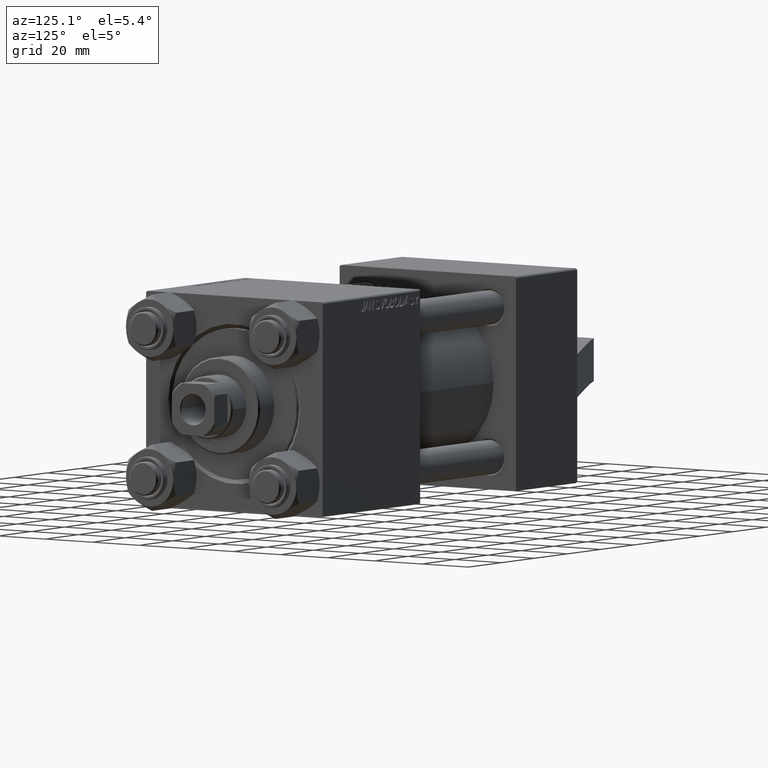
[diagram: clean part render]
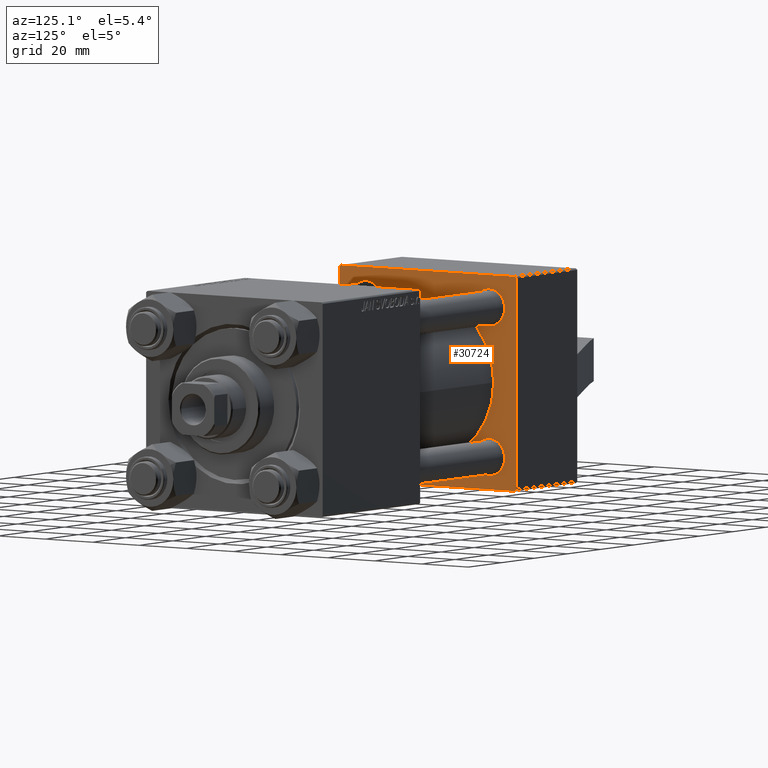
[diagram: same view with one face highlighted and labeled with its STEP entity id]
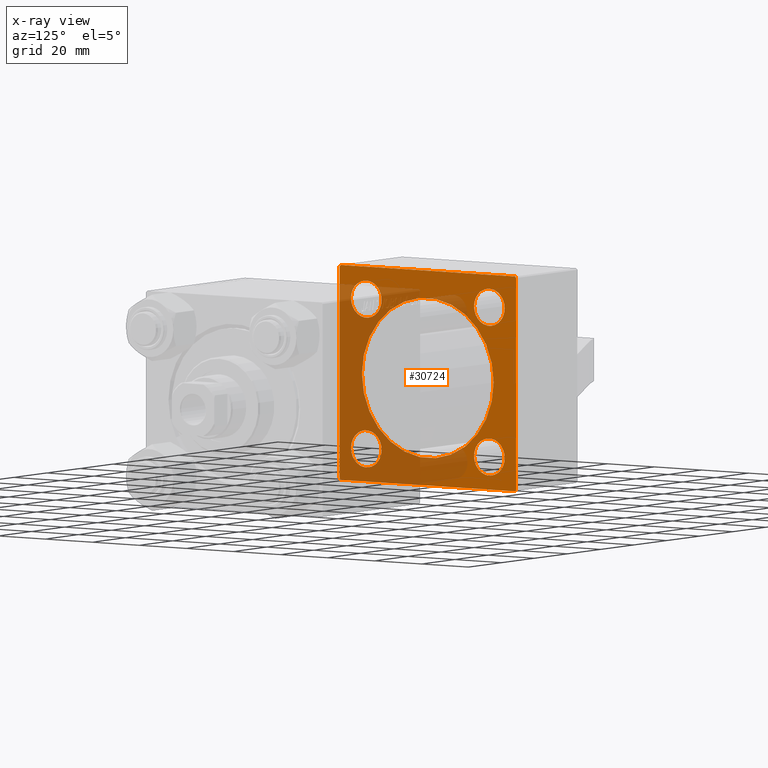
[diagram: x-ray of the same camera — body ghosted, the highlighted face saturated]
A machine part, auxiliary view. The second image highlights one B-rep face of the part: STEP entity #30724.
The next image is the same camera in x-ray: the body ghosted, the highlighted face saturated — about 48% of this face is hidden behind the body in this view.
In plain terms, the highlighted planar face has unit normal (-1, -0, 0).
Its self-contained STEP definition (entity closure, byte-faithful):
#794 = EDGE_LOOP ( 'NONE', ( #8708, #13601 ) ) ;
#1021 = CARTESIAN_POINT ( 'NONE',  ( 37.00000000000000000, 26.14999999999999858, 19.65000000000005187 ) ) ;
#1968 = VECTOR ( 'NONE', #42928, 1000.000000000000000 ) ;
#2595 = DIRECTION ( 'NONE',  ( 0.000000000000000000, 0.000000000000000000, 1.000000000000000000 ) ) ;
#2784 = CIRCLE ( 'NONE', #25120, 6.499999999999946709 ) ;
#3155 = EDGE_LOOP ( 'NONE', ( #13440, #42691 ) ) ;
#3582 = CARTESIAN_POINT ( 'NONE',  ( 37.00000000000000000, 8.269258236473776482E-16, -28.00000000000000000 ) ) ;
#3806 = CARTESIAN_POINT ( 'NONE',  ( 37.00000000000000000, 36.99999999999997868, -37.50000000000000000 ) ) ;
#3908 = DIRECTION ( 'NONE',  ( 0.000000000000000000, 0.000000000000000000, 1.000000000000000000 ) ) ;
#4571 = ORIENTED_EDGE ( 'NONE', *, *, #38037, .T. ) ;
#4610 = CARTESIAN_POINT ( 'NONE',  ( 37.00000000000000000, -37.50000000000000711, 37.49999999999999289 ) ) ;
#4747 = CARTESIAN_POINT ( 'NONE',  ( 37.00000000000000000, -26.14999999999999147, 26.15000000000000924 ) ) ;
#4766 = VERTEX_POINT ( 'NONE', #9053 ) ;
#5120 = AXIS2_PLACEMENT_3D ( 'NONE', #36177, #28741, #42459 ) ;
#5792 = VECTOR ( 'NONE', #18807, 1000.000000000000000 ) ;
#6279 = CIRCLE ( 'NONE', #30185, 28.00000000000000000 ) ;
#6759 = EDGE_CURVE ( 'NONE', #6827, #24386, #2784, .T. ) ;
#6827 = VERTEX_POINT ( 'NONE', #10605 ) ;
#6950 = AXIS2_PLACEMENT_3D ( 'NONE', #36964, #11613, #19061 ) ;
#7285 = CARTESIAN_POINT ( 'NONE',  ( 37.00000000000000000, -26.14999999999999147, -19.65000000000004832 ) ) ;
#7379 = VERTEX_POINT ( 'NONE', #39860 ) ;
#7595 = CIRCLE ( 'NONE', #17990, 6.499999999999953815 ) ;
#7866 = LINE ( 'NONE', #4610, #5792 ) ;
#8108 = CIRCLE ( 'NONE', #32637, 6.499999999999960920 ) ;
#8708 = ORIENTED_EDGE ( 'NONE', *, *, #27790, .T. ) ;
#9029 = ORIENTED_EDGE ( 'NONE', *, *, #10338, .T. ) ;
#9042 = DIRECTION ( 'NONE',  ( 0.000000000000000000, -1.000000000000000000, -9.251858538542971581E-17 ) ) ;
#9053 = CARTESIAN_POINT ( 'NONE',  ( 37.00000000000000000, -26.14999999999999147, -32.64999999999997016 ) ) ;
#9920 = CARTESIAN_POINT ( 'NONE',  ( 37.00000000000000000, 26.14999999999999858, -26.15000000000000213 ) ) ;
#10308 = VERTEX_POINT ( 'NONE', #14611 ) ;
#10338 = EDGE_CURVE ( 'NONE', #34282, #44540, #7866, .T. ) ;
#10572 = VECTOR ( 'NONE', #14556, 1000.000000000000114 ) ;
#10605 = CARTESIAN_POINT ( 'NONE',  ( 37.00000000000000000, 26.14999999999999858, -19.65000000000005542 ) ) ;
#10674 = CIRCLE ( 'NONE', #6950, 6.499999999999946709 ) ;
#10841 = LINE ( 'NONE', #25031, #10572 ) ;
#11001 = CARTESIAN_POINT ( 'NONE',  ( 37.00000000000000000, -26.14999999999999147, -26.15000000000000924 ) ) ;
#11238 = VECTOR ( 'NONE', #40204, 1000.000000000000000 ) ;
#11613 = DIRECTION ( 'NONE',  ( -1.000000000000000000, 0.000000000000000000, -0.000000000000000000 ) ) ;
#11837 = CARTESIAN_POINT ( 'NONE',  ( 37.00000000000000000, -37.50000000000000000, -37.00000000000003553 ) ) ;
#11960 = AXIS2_PLACEMENT_3D ( 'NONE', #12094, #18862, #37459 ) ;
#11990 = CARTESIAN_POINT ( 'NONE',  ( 37.00000000000000000, 37.49999999999999289, 37.00000000000000000 ) ) ;
#12094 = CARTESIAN_POINT ( 'NONE',  ( 37.00000000000000000, 26.14999999999999858, 26.15000000000000213 ) ) ;
#13008 = DIRECTION ( 'NONE',  ( 1.000000000000000000, -0.000000000000000000, 0.000000000000000000 ) ) ;
#13156 = EDGE_CURVE ( 'NONE', #23474, #4766, #40797, .T. ) ;
#13438 = CIRCLE ( 'NONE', #11960, 6.499999999999953815 ) ;
#13440 = ORIENTED_EDGE ( 'NONE', *, *, #27338, .T. ) ;
#13517 = EDGE_CURVE ( 'NONE', #4766, #23474, #8108, .T. ) ;
#13601 = ORIENTED_EDGE ( 'NONE', *, *, #6759, .T. ) ;
#13616 = ORIENTED_EDGE ( 'NONE', *, *, #42978, .T. ) ;
#14556 = DIRECTION ( 'NONE',  ( 0.000000000000000000, -0.7071067811865474617, 0.7071067811865474617 ) ) ;
#14611 = CARTESIAN_POINT ( 'NONE',  ( 37.00000000000000000, -2.602085213965210642E-15, 28.00000000000000000 ) ) ;
#14842 = ORIENTED_EDGE ( 'NONE', *, *, #18279, .T. ) ;
#15445 = DIRECTION ( 'NONE',  ( -1.000000000000000000, 0.000000000000000000, -0.000000000000000000 ) ) ;
#15520 = VECTOR ( 'NONE', #28782, 1000.000000000000114 ) ;
#15888 = CIRCLE ( 'NONE', #22571, 6.499999999999968026 ) ;
#15966 = FACE_BOUND ( 'NONE', #3155, .T. ) ;
#16019 = AXIS2_PLACEMENT_3D ( 'NONE', #44726, #34262, #2595 ) ;
#16140 = VERTEX_POINT ( 'NONE', #21284 ) ;
#17120 = ORIENTED_EDGE ( 'NONE', *, *, #24163, .T. ) ;
#17184 = VECTOR ( 'NONE', #18024, 1000.000000000000000 ) ;
#17635 = ORIENTED_EDGE ( 'NONE', *, *, #32462, .F. ) ;
#17990 = AXIS2_PLACEMENT_3D ( 'NONE', #42456, #32223, #21286 ) ;
#18024 = DIRECTION ( 'NONE',  ( 0.000000000000000000, -1.000000000000000000, -9.251858538542972814E-17 ) ) ;
#18040 = CARTESIAN_POINT ( 'NONE',  ( 37.00000000000000000, -37.00000000000002132, -37.50000000000000711 ) ) ;
#18208 = DIRECTION ( 'NONE',  ( 0.000000000000000000, 0.000000000000000000, 1.000000000000000000 ) ) ;
#18253 = LINE ( 'NONE', #21749, #17184 ) ;
#18279 = EDGE_CURVE ( 'NONE', #22910, #27201, #13438, .T. ) ;
#18638 = EDGE_CURVE ( 'NONE', #35948, #16140, #44146, .T. ) ;
#18807 = DIRECTION ( 'NONE',  ( 0.000000000000000000, 9.251858538542971581E-17, -1.000000000000000000 ) ) ;
#18862 = DIRECTION ( 'NONE',  ( -1.000000000000000000, 0.000000000000000000, -0.000000000000000000 ) ) ;
#18882 = CARTESIAN_POINT ( 'NONE',  ( 37.00000000000000000, -37.00000000000002132, -37.50000000000000711 ) ) ;
#19061 = DIRECTION ( 'NONE',  ( 0.000000000000000000, 0.000000000000000000, 1.000000000000000000 ) ) ;
#19186 = VERTEX_POINT ( 'NONE', #36383 ) ;
#19224 = VERTEX_POINT ( 'NONE', #45186 ) ;
#21045 = EDGE_LOOP ( 'NONE', ( #26261, #41822 ) ) ;
#21284 = CARTESIAN_POINT ( 'NONE',  ( 37.00000000000000000, 37.49999999999999289, -36.99999999999998579 ) ) ;
#21286 = DIRECTION ( 'NONE',  ( 0.000000000000000000, 0.000000000000000000, 1.000000000000000000 ) ) ;
#21539 = LINE ( 'NONE', #18040, #1968 ) ;
#21710 = DIRECTION ( 'NONE',  ( -1.000000000000000000, 0.000000000000000000, -0.000000000000000000 ) ) ;
#21749 = CARTESIAN_POINT ( 'NONE',  ( 37.00000000000000000, 37.49999999999999289, -37.50000000000000000 ) ) ;
#21800 = ORIENTED_EDGE ( 'NONE', *, *, #18638, .F. ) ;
#22025 = EDGE_CURVE ( 'NONE', #33907, #44176, #18253, .T. ) ;
#22571 = AXIS2_PLACEMENT_3D ( 'NONE', #4747, #15445, #29648 ) ;
#22673 = AXIS2_PLACEMENT_3D ( 'NONE', #37379, #40869, #36911 ) ;
#22910 = VERTEX_POINT ( 'NONE', #35717 ) ;
#22954 = VERTEX_POINT ( 'NONE', #39441 ) ;
#22979 = EDGE_CURVE ( 'NONE', #27201, #22910, #7595, .T. ) ;
#23411 = FACE_BOUND ( 'NONE', #45707, .T. ) ;
#23466 = CIRCLE ( 'NONE', #16019, 28.00000000000000000 ) ;
#23474 = VERTEX_POINT ( 'NONE', #7285 ) ;
#23512 = ORIENTED_EDGE ( 'NONE', *, *, #32787, .F. ) ;
#24163 = EDGE_CURVE ( 'NONE', #35948, #19224, #10841, .T. ) ;
#24386 = VERTEX_POINT ( 'NONE', #38030 ) ;
#25031 = CARTESIAN_POINT ( 'NONE',  ( 37.00000000000000000, 36.99999999999999289, 37.50000000000000000 ) ) ;
#25120 = AXIS2_PLACEMENT_3D ( 'NONE', #9920, #38538, #42479 ) ;
#26023 = CARTESIAN_POINT ( 'NONE',  ( 37.00000000000000000, 37.49999999999999289, 37.50000000000000000 ) ) ;
#26231 = VERTEX_POINT ( 'NONE', #3582 ) ;
#26252 = CARTESIAN_POINT ( 'NONE',  ( 37.00000000000000000, -37.50000000000000711, 36.99999999999999289 ) ) ;
#26261 = ORIENTED_EDGE ( 'NONE', *, *, #13517, .T. ) ;
#26447 = FACE_OUTER_BOUND ( 'NONE', #39614, .T. ) ;
#27201 = VERTEX_POINT ( 'NONE', #1021 ) ;
#27338 = EDGE_CURVE ( 'NONE', #7379, #19186, #15888, .T. ) ;
#27790 = EDGE_CURVE ( 'NONE', #24386, #6827, #10674, .T. ) ;
#28010 = AXIS2_PLACEMENT_3D ( 'NONE', #32073, #35795, #3908 ) ;
#28741 = DIRECTION ( 'NONE',  ( -1.000000000000000000, 0.000000000000000000, -0.000000000000000000 ) ) ;
#28782 = DIRECTION ( 'NONE',  ( -0.000000000000000000, 0.7071067811865474617, 0.7071067811865474617 ) ) ;
#29245 = LINE ( 'NONE', #32265, #15520 ) ;
#29648 = DIRECTION ( 'NONE',  ( 0.000000000000000000, 0.000000000000000000, 1.000000000000000000 ) ) ;
#30170 = PLANE ( 'NONE',  #22673 ) ;
#30185 = AXIS2_PLACEMENT_3D ( 'NONE', #37000, #13008, #33744 ) ;
#30436 = EDGE_CURVE ( 'NONE', #19224, #22954, #41143, .T. ) ;
#30724 = ADVANCED_FACE ( 'NONE', ( #23411, #33660, #15966, #34121, #33889, #26447 ), #30170, .F. ) ;
#32073 = CARTESIAN_POINT ( 'NONE',  ( 37.00000000000000000, -26.14999999999999147, 26.15000000000000924 ) ) ;
#32223 = DIRECTION ( 'NONE',  ( -1.000000000000000000, 0.000000000000000000, -0.000000000000000000 ) ) ;
#32265 = CARTESIAN_POINT ( 'NONE',  ( 37.00000000000000000, 37.49999999999999289, -36.99999999999998579 ) ) ;
#32462 = EDGE_CURVE ( 'NONE', #10308, #26231, #23466, .T. ) ;
#32637 = AXIS2_PLACEMENT_3D ( 'NONE', #11001, #21710, #18208 ) ;
#32787 = EDGE_CURVE ( 'NONE', #26231, #10308, #6279, .T. ) ;
#33660 = FACE_BOUND ( 'NONE', #35850, .T. ) ;
#33744 = DIRECTION ( 'NONE',  ( 0.000000000000000000, 0.000000000000000000, 1.000000000000000000 ) ) ;
#33889 = FACE_BOUND ( 'NONE', #794, .T. ) ;
#33907 = VERTEX_POINT ( 'NONE', #3806 ) ;
#34121 = FACE_BOUND ( 'NONE', #21045, .T. ) ;
#34262 = DIRECTION ( 'NONE',  ( 1.000000000000000000, -0.000000000000000000, 0.000000000000000000 ) ) ;
#34282 = VERTEX_POINT ( 'NONE', #26252 ) ;
#34559 = VECTOR ( 'NONE', #9042, 1000.000000000000000 ) ;
#35717 = CARTESIAN_POINT ( 'NONE',  ( 37.00000000000000000, 26.14999999999999858, 32.64999999999995595 ) ) ;
#35756 = ORIENTED_EDGE ( 'NONE', *, *, #30436, .T. ) ;
#35795 = DIRECTION ( 'NONE',  ( -1.000000000000000000, 0.000000000000000000, -0.000000000000000000 ) ) ;
#35850 = EDGE_LOOP ( 'NONE', ( #40706, #14842 ) ) ;
#35948 = VERTEX_POINT ( 'NONE', #11990 ) ;
#36177 = CARTESIAN_POINT ( 'NONE',  ( 37.00000000000000000, -26.14999999999999147, -26.15000000000000924 ) ) ;
#36383 = CARTESIAN_POINT ( 'NONE',  ( 37.00000000000000000, -26.14999999999999147, 32.64999999999997726 ) ) ;
#36905 = CARTESIAN_POINT ( 'NONE',  ( 37.00000000000000000, -37.50000000000000711, 36.99999999999999289 ) ) ;
#36911 = DIRECTION ( 'NONE',  ( -0.000000000000000000, 0.000000000000000000, 1.000000000000000000 ) ) ;
#36964 = CARTESIAN_POINT ( 'NONE',  ( 37.00000000000000000, 26.14999999999999858, -26.15000000000000213 ) ) ;
#37000 = CARTESIAN_POINT ( 'NONE',  ( 37.00000000000000000, -2.602085213965210642E-15, 0.000000000000000000 ) ) ;
#37374 = LINE ( 'NONE', #36905, #41430 ) ;
#37379 = CARTESIAN_POINT ( 'NONE',  ( 37.00000000000000000, 0.000000000000000000, 0.000000000000000000 ) ) ;
#37430 = CARTESIAN_POINT ( 'NONE',  ( 37.00000000000000000, 37.49999999999999289, 37.50000000000000000 ) ) ;
#37459 = DIRECTION ( 'NONE',  ( 0.000000000000000000, 0.000000000000000000, 1.000000000000000000 ) ) ;
#37833 = DIRECTION ( 'NONE',  ( -0.000000000000000000, -0.7071067811865474617, -0.7071067811865474617 ) ) ;
#38030 = CARTESIAN_POINT ( 'NONE',  ( 37.00000000000000000, 26.14999999999999858, -32.64999999999994884 ) ) ;
#38037 = EDGE_CURVE ( 'NONE', #44540, #44176, #21539, .T. ) ;
#38538 = DIRECTION ( 'NONE',  ( -1.000000000000000000, 0.000000000000000000, -0.000000000000000000 ) ) ;
#39086 = EDGE_CURVE ( 'NONE', #19186, #7379, #39139, .T. ) ;
#39139 = CIRCLE ( 'NONE', #28010, 6.499999999999968026 ) ;
#39441 = CARTESIAN_POINT ( 'NONE',  ( 37.00000000000000000, -37.00000000000000711, 37.49999999999999289 ) ) ;
#39460 = ORIENTED_EDGE ( 'NONE', *, *, #22025, .F. ) ;
#39614 = EDGE_LOOP ( 'NONE', ( #39460, #13616, #21800, #17120, #35756, #45437, #9029, #4571 ) ) ;
#39860 = CARTESIAN_POINT ( 'NONE',  ( 37.00000000000000000, -26.14999999999999147, 19.65000000000004121 ) ) ;
#40204 = DIRECTION ( 'NONE',  ( 0.000000000000000000, 0.000000000000000000, -1.000000000000000000 ) ) ;
#40706 = ORIENTED_EDGE ( 'NONE', *, *, #22979, .T. ) ;
#40797 = CIRCLE ( 'NONE', #5120, 6.499999999999960920 ) ;
#40869 = DIRECTION ( 'NONE',  ( -1.000000000000000000, 0.000000000000000000, -0.000000000000000000 ) ) ;
#41143 = LINE ( 'NONE', #37430, #34559 ) ;
#41190 = EDGE_CURVE ( 'NONE', #22954, #34282, #37374, .T. ) ;
#41430 = VECTOR ( 'NONE', #37833, 1000.000000000000114 ) ;
#41822 = ORIENTED_EDGE ( 'NONE', *, *, #13156, .T. ) ;
#42456 = CARTESIAN_POINT ( 'NONE',  ( 37.00000000000000000, 26.14999999999999858, 26.15000000000000213 ) ) ;
#42459 = DIRECTION ( 'NONE',  ( 0.000000000000000000, 0.000000000000000000, 1.000000000000000000 ) ) ;
#42479 = DIRECTION ( 'NONE',  ( 0.000000000000000000, 0.000000000000000000, 1.000000000000000000 ) ) ;
#42691 = ORIENTED_EDGE ( 'NONE', *, *, #39086, .T. ) ;
#42928 = DIRECTION ( 'NONE',  ( 0.000000000000000000, 0.7071067811865524577, -0.7071067811865426878 ) ) ;
#42978 = EDGE_CURVE ( 'NONE', #33907, #16140, #29245, .T. ) ;
#44146 = LINE ( 'NONE', #26023, #11238 ) ;
#44176 = VERTEX_POINT ( 'NONE', #18882 ) ;
#44540 = VERTEX_POINT ( 'NONE', #11837 ) ;
#44726 = CARTESIAN_POINT ( 'NONE',  ( 37.00000000000000000, -2.602085213965210642E-15, 0.000000000000000000 ) ) ;
#45186 = CARTESIAN_POINT ( 'NONE',  ( 37.00000000000000000, 36.99999999999999289, 37.50000000000000000 ) ) ;
#45437 = ORIENTED_EDGE ( 'NONE', *, *, #41190, .T. ) ;
#45707 = EDGE_LOOP ( 'NONE', ( #17635, #23512 ) ) ;